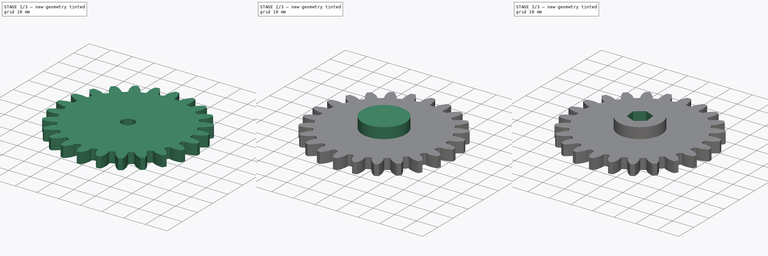
[diagram: build sequence overview — one tinted view per stage of 3, left to right]
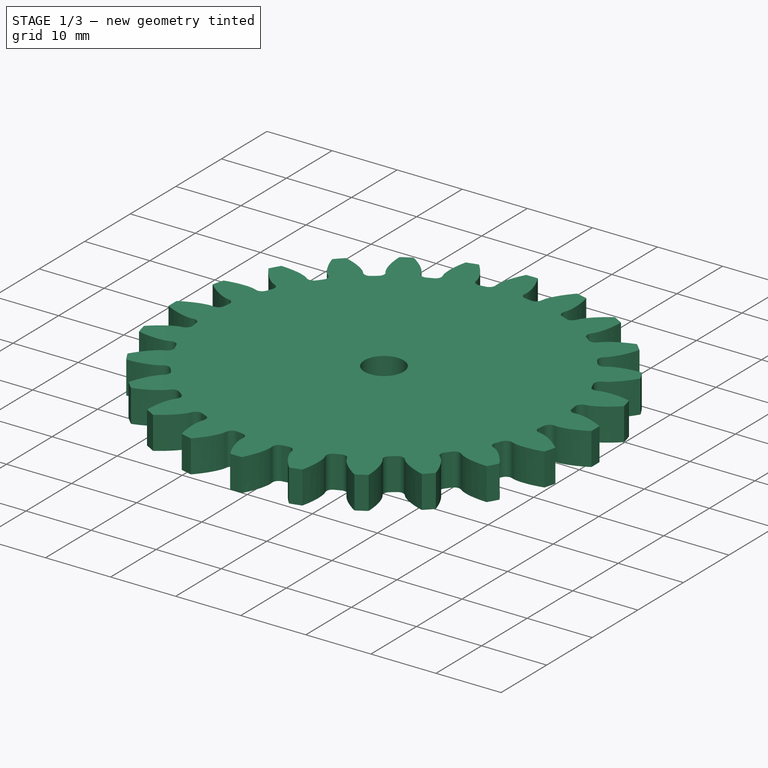
[diagram: stage 1 of 3 — iso view after this stage's code; geometry added in this stage tinted green]
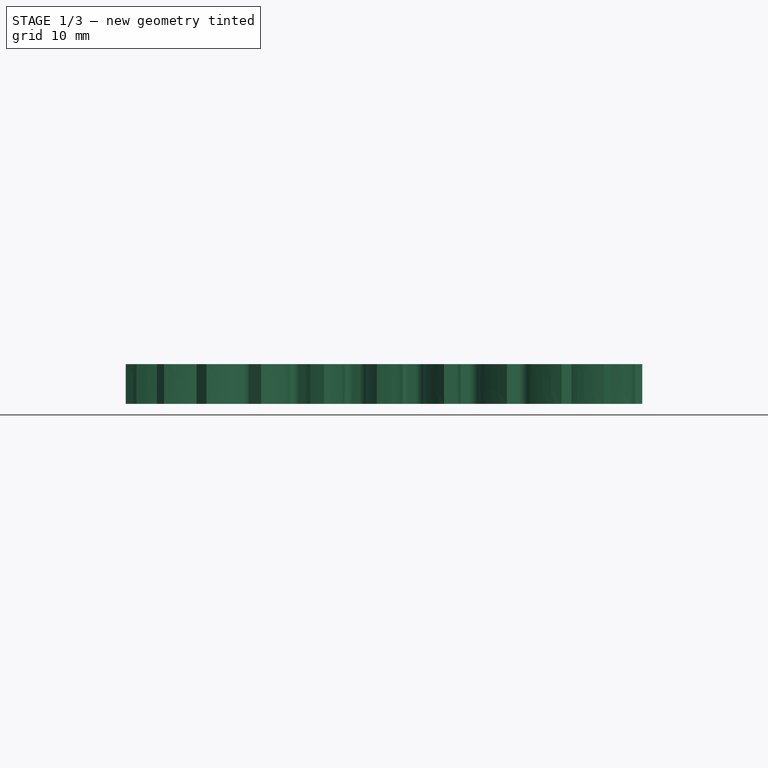
[diagram: stage 1 of 3 — front view after this stage's code; geometry added in this stage tinted green]
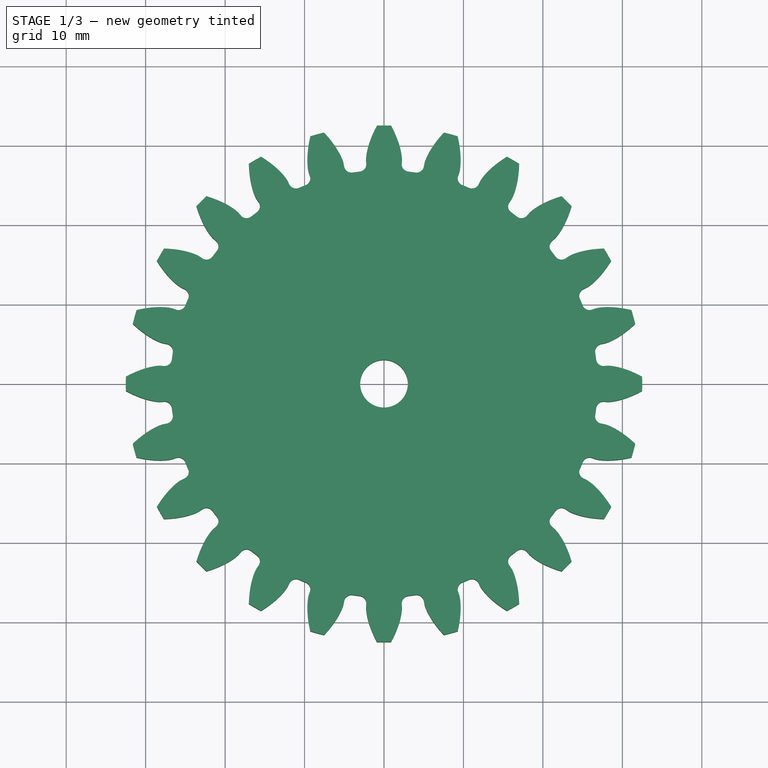
[diagram: stage 1 of 3 — top view after this stage's code; geometry added in this stage tinted green]
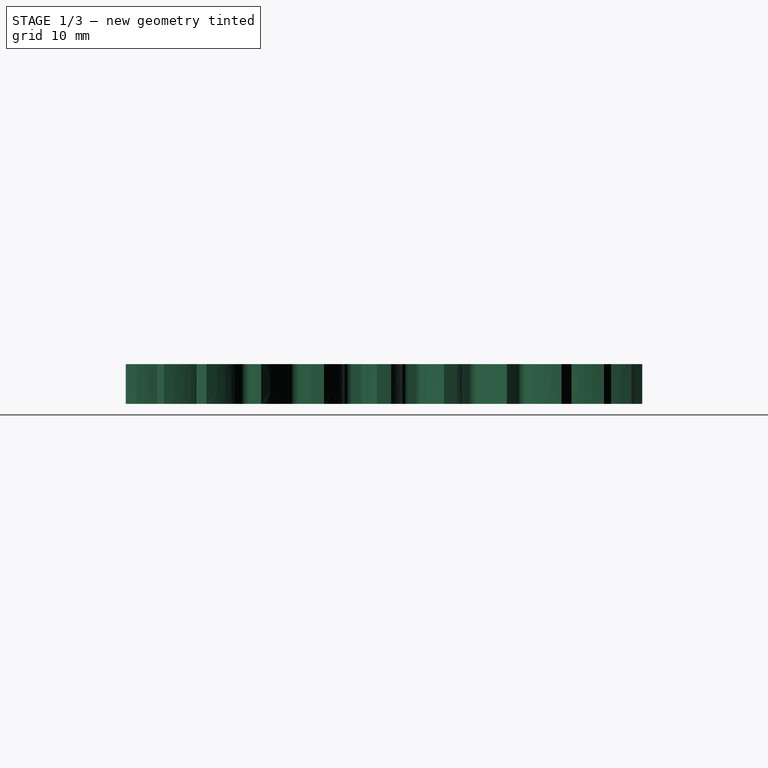
[diagram: stage 1 of 3 — right view after this stage's code; geometry added in this stage tinted green]
FCSTD DOCUMENT  (FreeCAD 0.16R6704 (Git))
Label: barn_door_tracker_24_teeth_gear
License: All rights reserved
LicenseURL: http://en.wikipedia.org/wiki/All_rights_reserved
objects: Sketcher::SketchObject×4, PartDesign::Pocket×3, PartDesign::Pad×2, Part::Part2DObjectPython×1
note: 15 computed .brp shape members not serialized (recipe doc carries the construction recipe); baked Part::Feature solids carry a one-line shape summary decoded from their .brp

FEATURE [Part::Part2DObjectPython] InvoluteGear  # Draft 2D object (typed FeaturePython)
  ExternalGear = true
  HighPrecision = true
  Modules = 2.5
  NumberOfTeeth = 24
  PressureAngle = 20
FEATURE [PartDesign::Pad] Pad  label="GearPad"
  Length = 5
  Length2 = 100
  Sketch = -> InvoluteGear
  Type = 0
FEATURE [Sketcher::SketchObject] Sketch002  label="Circle6.0"
  Placement = pos=(0,0,5) rot=(0,0,1;0rad)
  Support = -> Pad [Face242]
  sketch-geometry (1):
    g0: Circle CenterX=0 CenterY=0 CenterZ=0 NormalX=0 NormalY=0 NormalZ=1 Radius=3
  constraints (1):
    c: Coincident(g0,g-1)
FEATURE [PartDesign::Pocket] Pocket  label="HolePocket"
  Length = 5
  Sketch = -> Sketch002
  Type = 0
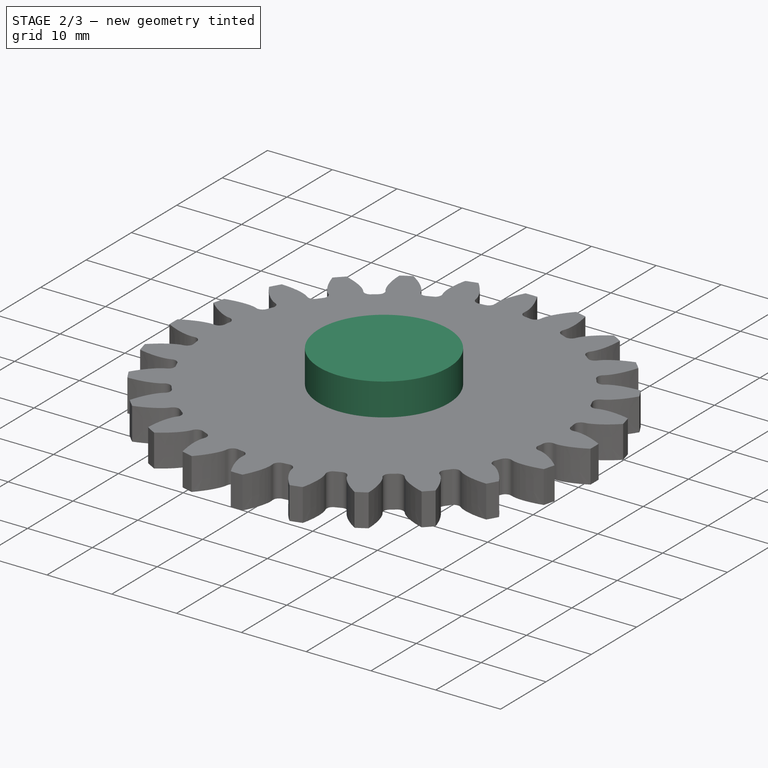
[diagram: stage 2 of 3 — iso view after this stage's code; geometry added in this stage tinted green]
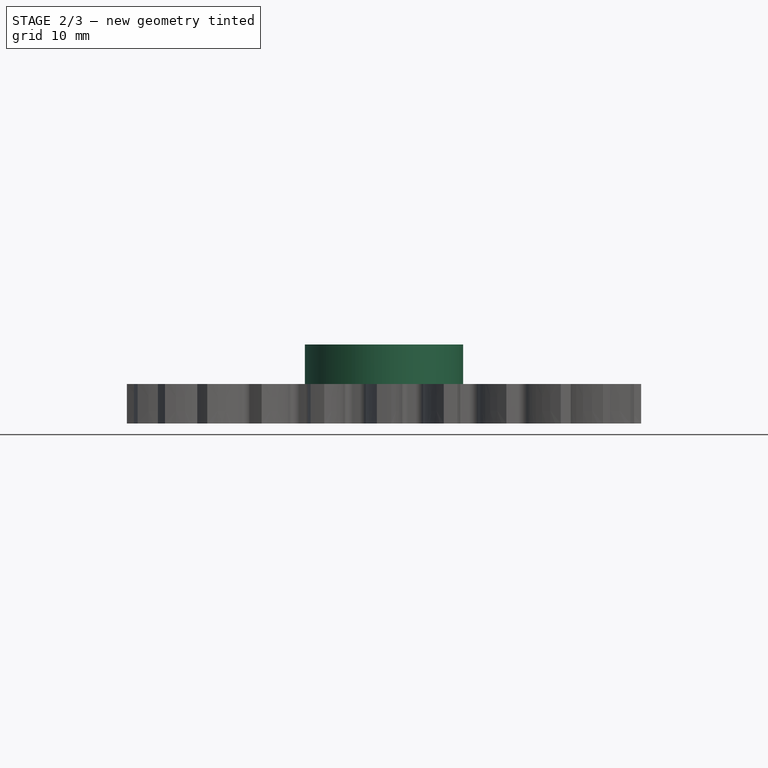
[diagram: stage 2 of 3 — front view after this stage's code; geometry added in this stage tinted green]
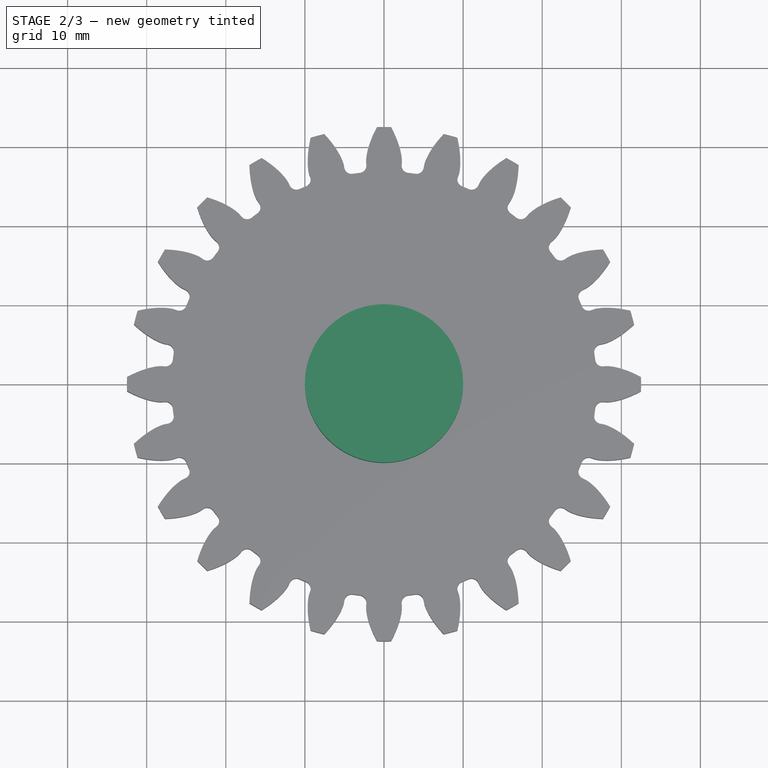
[diagram: stage 2 of 3 — top view after this stage's code; geometry added in this stage tinted green]
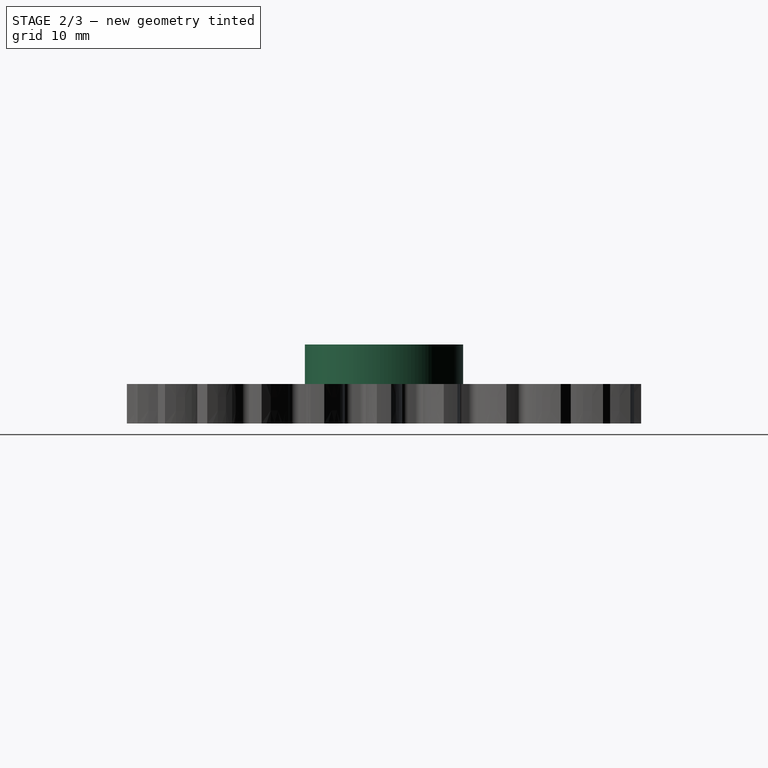
[diagram: stage 2 of 3 — right view after this stage's code; geometry added in this stage tinted green]
FEATURE [Sketcher::SketchObject] Sketch  label="Circle10.0"
  Placement = pos=(0,0,5) rot=(0,0,1;0rad)
  Support = -> Pocket [Face5]
  sketch-geometry (1):
    g0: Circle CenterX=0 CenterY=0 CenterZ=0 NormalX=0 NormalY=0 NormalZ=1 Radius=10
  constraints (1):
    c: Coincident(g0,g-1)
FEATURE [PartDesign::Pad] Pad001  label="HeadPad"
  Length = 5
  Length2 = 100
  Sketch = -> Sketch
  Type = 0
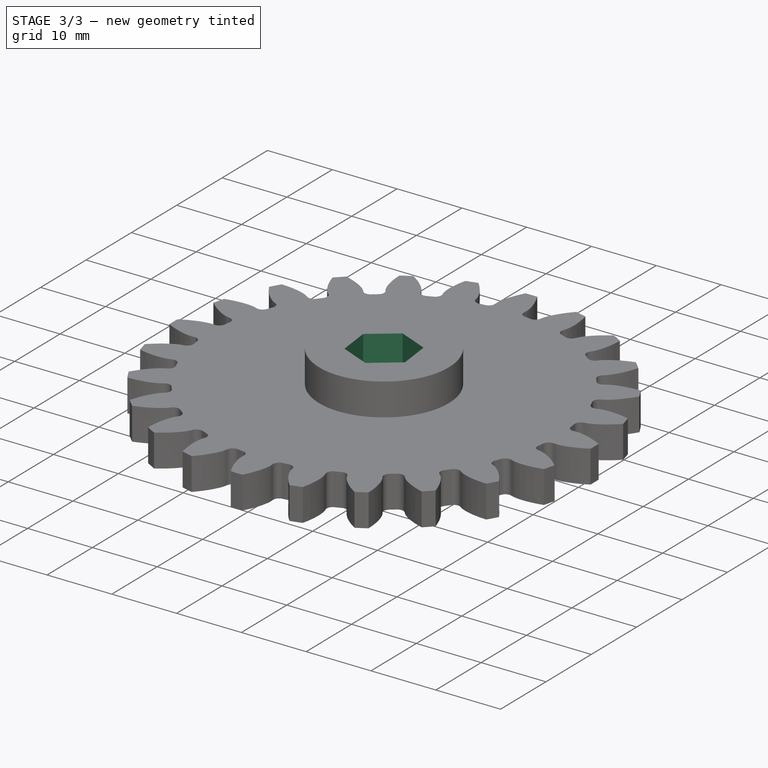
[diagram: stage 3 of 3 — iso view after this stage's code; geometry added in this stage tinted green]
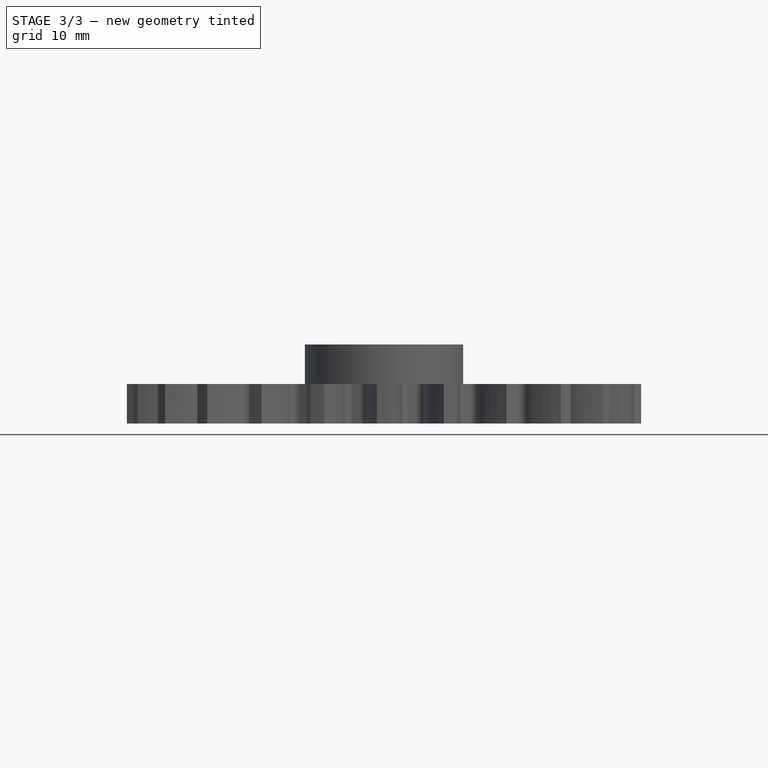
[diagram: stage 3 of 3 — front view after this stage's code; geometry added in this stage tinted green]
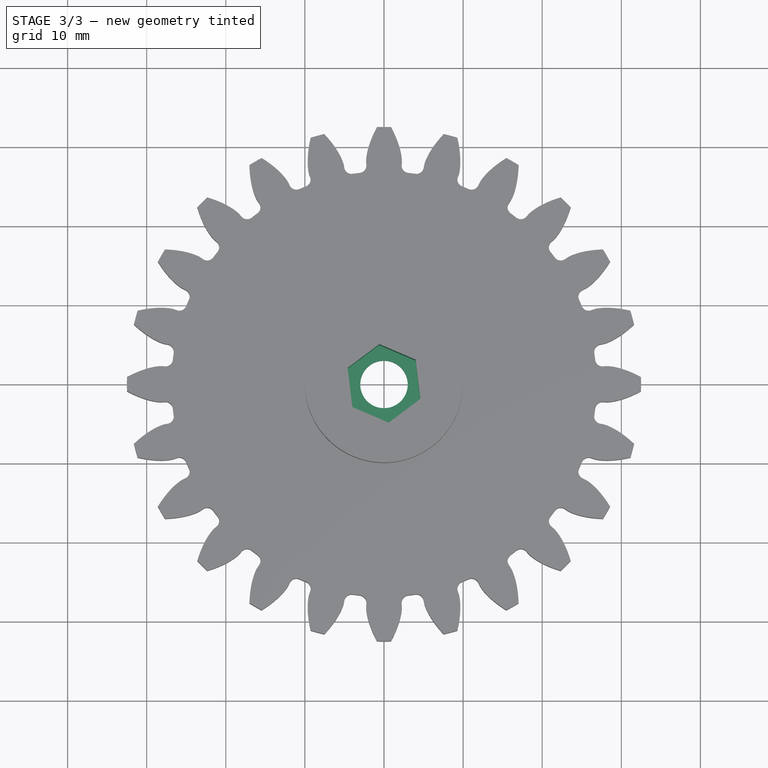
[diagram: stage 3 of 3 — top view after this stage's code; geometry added in this stage tinted green]
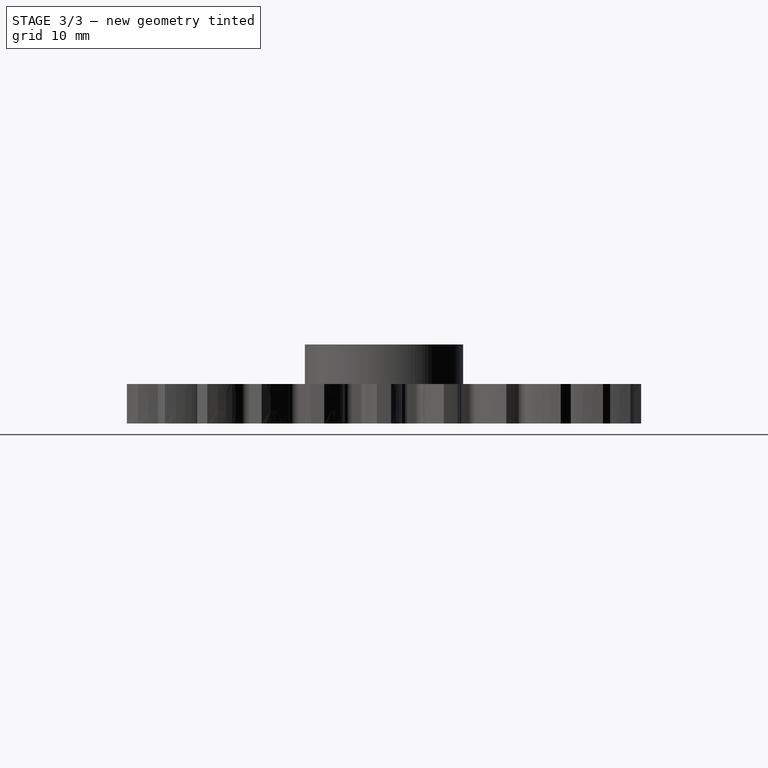
[diagram: stage 3 of 3 — right view after this stage's code; geometry added in this stage tinted green]
FEATURE [Sketcher::SketchObject] Sketch001  label="hexa5.0"
  Placement = pos=(0,0,10) rot=(0,0,1;0rad)
  Support = -> Pad001 [Face246]
  sketch-geometry (7):
    g0: LineSegment StartX=4 StartY=3 StartZ=0 EndX=-0.598076 EndY=4.9641 EndZ=0
    g1: LineSegment StartX=-0.598076 StartY=4.9641 StartZ=0 EndX=-4.59808 EndY=1.9641 EndZ=0
    g2: LineSegment StartX=-4.59808 StartY=1.9641 StartZ=0 EndX=-4 EndY=-3 EndZ=0
    g3: LineSegment StartX=-4 StartY=-3 StartZ=0 EndX=0.598076 EndY=-4.9641 EndZ=0
    g4: LineSegment StartX=0.598076 StartY=-4.9641 StartZ=0 EndX=4.59808 EndY=-1.9641 EndZ=0
    g5: LineSegment StartX=4.59808 StartY=-1.9641 StartZ=0 EndX=4 EndY=3 EndZ=0
    g6: Circle [constr] CenterX=0 CenterY=0 CenterZ=0 NormalX=0 NormalY=0 NormalZ=1 Radius=5
  constraints (14):
    c: Coincident(g0,g1)
    c: Coincident(g1,g2)
    c: Coincident(g2,g3)
    c: Coincident(g3,g4)
    c: Coincident(g4,g5)
    c: Coincident(g5,g0)
    c: Equal(g0, g1-g5) x5
    c: PointOnObject(g0,g6)
    c: PointOnObject(g1,g6)
    c: PointOnObject(g2,g6)
    c: PointOnObject(g3,g6)
    c: PointOnObject(g4,g6)
    c: PointOnObject(g5,g6)
    c: Coincident(g6,g-1)
FEATURE [PartDesign::Pocket] Pocket001  label="HexPocketForNutM5_01"
  Length = 5
  Sketch = -> Sketch001
  Type = 0
FEATURE [Sketcher::SketchObject] Sketch006  label="hexa5.001"
  Placement = pos=(0,0,5) rot=(0,0,1;0rad)
  Support = -> Pocket001 [Face5]
  sketch-geometry (7):
    g0: LineSegment StartX=4 StartY=3 StartZ=0 EndX=-0.598076 EndY=4.9641 EndZ=0
    g1: LineSegment StartX=-0.598076 StartY=4.9641 StartZ=0 EndX=-4.59808 EndY=1.9641 EndZ=0
    g2: LineSegment StartX=-4.59808 StartY=1.9641 StartZ=0 EndX=-4 EndY=-3 EndZ=0
    g3: LineSegment StartX=-4 StartY=-3 StartZ=0 EndX=0.598076 EndY=-4.9641 EndZ=0
    g4: LineSegment StartX=0.598076 StartY=-4.9641 StartZ=0 EndX=4.59808 EndY=-1.9641 EndZ=0
    g5: LineSegment StartX=4.59808 StartY=-1.9641 StartZ=0 EndX=4 EndY=3 EndZ=0
    g6: Circle [constr] CenterX=0 CenterY=0 CenterZ=0 NormalX=0 NormalY=0 NormalZ=1 Radius=5
  constraints (14):
    c: Coincident(g0,g1)
    c: Coincident(g1,g2)
    c: Coincident(g2,g3)
    c: Coincident(g3,g4)
    c: Coincident(g4,g5)
    c: Coincident(g5,g0)
    c: Equal(g0, g1-g5) x5
    c: PointOnObject(g0,g6)
    c: PointOnObject(g1,g6)
    c: PointOnObject(g2,g6)
    c: PointOnObject(g3,g6)
    c: PointOnObject(g4,g6)
    c: PointOnObject(g5,g6)
    c: Coincident(g6,g-1)
FEATURE [PartDesign::Pocket] Pocket002  label="HexPocketForNutM5_02"
  Length = 3
  Sketch = -> Sketch006
  Type = 0
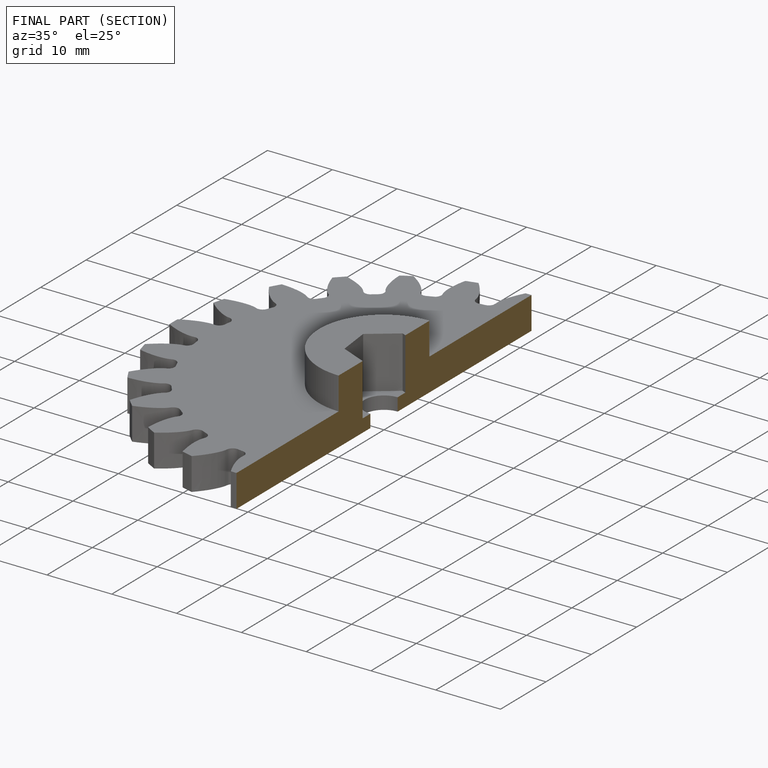
[diagram: finished part — half-section view (interior)]
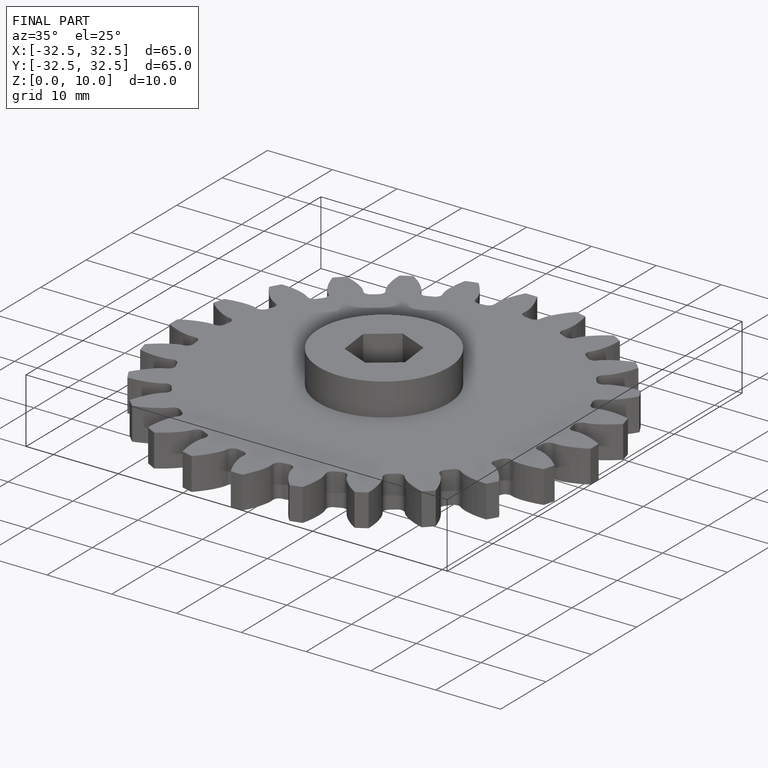
[diagram: finished part — iso view with bounding-box wireframe]
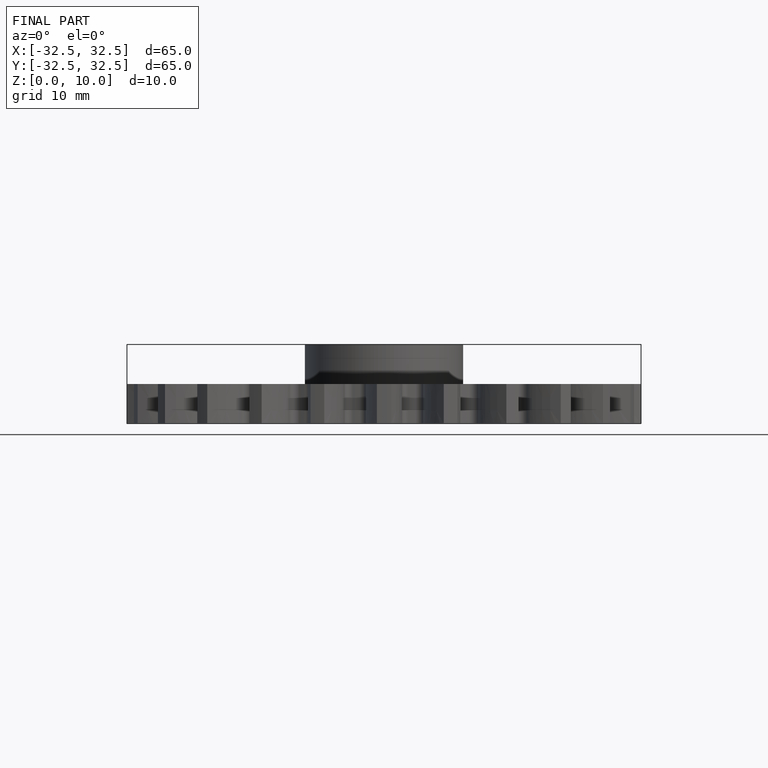
[diagram: finished part — front view with bounding-box wireframe]
